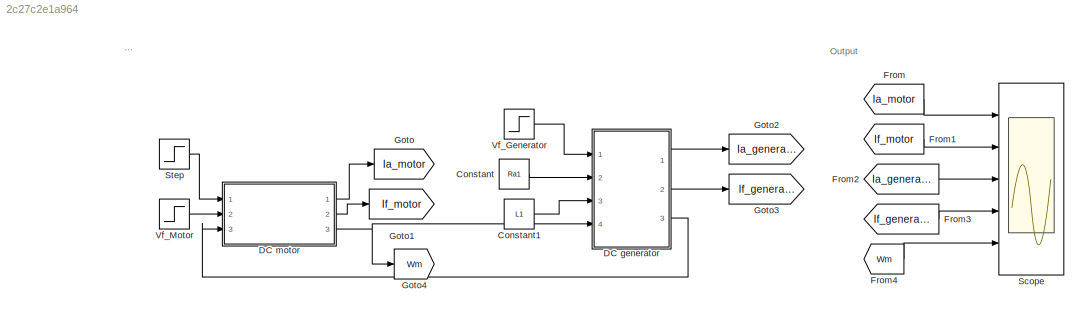
MODEL slx_2c27c2e1a964
KIND model
CONFIG AbsTol = auto
CONFIG EnableMultiTasking = off
CONFIG FixedStep = auto
CONFIG InitFcn = Va=240;\nVf=5;\n\nRf=5;\nMaf=1.8;\nLf=2;\nJ=.086;\nB=0;\nLa=10.4*10^-3;\nRa=1.43;\n\nRf1=5;\nKv1=1.8;\nMaf1=1.8;\nIf1=Kv1/Maf1;\nVf1=If1*Rf1;\nLf1=.2;\nJ1=.086;\nB1=0;\nLa1=10.4*10^(-3);\nRa1=1.43;\nL1=10.4*10^-3;\nRa1=1.43;
CONFIG MaxStep = auto
CONFIG MinStep = auto
CONFIG RelTol = 1e-3
CONFIG SampleTimeConstraint = Unconstrained
CONFIG Solver = VariableStepAuto
CONFIG SolverName = VariableStepAuto
CONFIG StartTime = 0.0
CONFIG StopTime = 10.0
BLOCK [Constant] Constant
  Value = Ra1
BLOCK [Constant] Constant1
  Value = L1
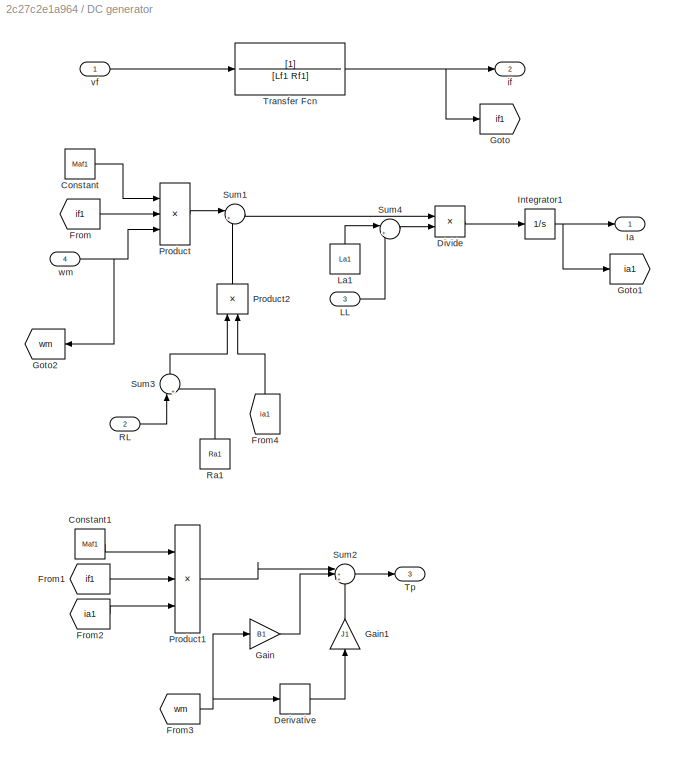
BLOCK [SubSystem] DC generator
  Ports = [4, 3]
  RequestExecContextInheritance = off
BLOCK [Constant] DC generator/Constant
  Value = Maf1
BLOCK [Constant] DC generator/Constant1
  Value = Maf1
BLOCK [Derivative] DC generator/Derivative
BLOCK [Product] DC generator/Divide
  Inputs = */
  Ports = [2, 1]
BLOCK [From] DC generator/From
  GotoTag = if1
BLOCK [From] DC generator/From1
  GotoTag = if1
BLOCK [From] DC generator/From2
  GotoTag = ia1
BLOCK [From] DC generator/From3
  GotoTag = wm
  NameLocation = top
BLOCK [From] DC generator/From4
  GotoTag = ia1
  NameLocation = right
BLOCK [Gain] DC generator/Gain
  Gain = B1
BLOCK [Gain] DC generator/Gain1
  Gain = J1
  NameLocation = right
BLOCK [Goto] DC generator/Goto
  GotoTag = if1
BLOCK [Goto] DC generator/Goto1
  GotoTag = ia1
BLOCK [Goto] DC generator/Goto2
  GotoTag = wm
  NameLocation = top
BLOCK [Outport] DC generator/Ia
BLOCK [Integrator] DC generator/Integrator1
  Ports = [1, 1]
BLOCK [Inport] DC generator/LL
  Port = 3
BLOCK [Constant] DC generator/La1
  NameLocation = right
  Value = La1
BLOCK [Product] DC generator/Product
  Inputs = 3
  Ports = [3, 1]
BLOCK [Product] DC generator/Product1
  Inputs = 3
  Ports = [3, 1]
BLOCK [Product] DC generator/Product2
  NameLocation = right
  Ports = [2, 1]
BLOCK [Inport] DC generator/RL
  Port = 2
BLOCK [Constant] DC generator/Ra1
  NameLocation = right
  Value = Ra1
BLOCK [Sum] DC generator/Sum1
  Inputs = |+-
  Ports = [2, 1]
BLOCK [Sum] DC generator/Sum2
  Inputs = |+++
  Ports = [3, 1]
BLOCK [Sum] DC generator/Sum3
  Inputs = |++
  NameLocation = right
  Ports = [2, 1]
BLOCK [Sum] DC generator/Sum4
  Inputs = |++
  Ports = [2, 1]
BLOCK [Outport] DC generator/Tp
  Port = 3
BLOCK [TransferFcn] DC generator/Transfer Fcn
  Denominator = [Lf1 Rf1]
BLOCK [Outport] DC generator/if
  Port = 2
BLOCK [Inport] DC generator/vf
BLOCK [Inport] DC generator/wm
  NameLocation = right
  Port = 4
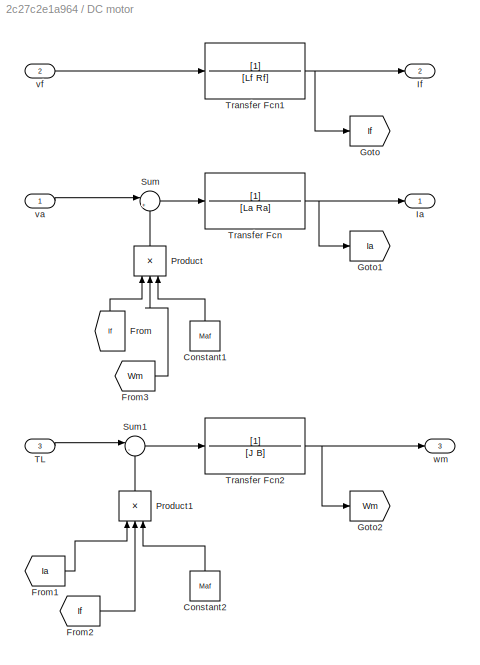
BLOCK [SubSystem] DC motor
  Ports = [3, 3]
  RequestExecContextInheritance = off
BLOCK [Constant] DC motor/Constant1
  NameLocation = right
  Value = Maf
BLOCK [Constant] DC motor/Constant2
  NameLocation = right
  Value = Maf
BLOCK [From] DC motor/From
  GotoTag = If
  NameLocation = right
BLOCK [From] DC motor/From1
  GotoTag = Ia
BLOCK [From] DC motor/From2
  GotoTag = If
BLOCK [From] DC motor/From3
  GotoTag = Wm
BLOCK [Goto] DC motor/Goto
  GotoTag = If
BLOCK [Goto] DC motor/Goto1
  GotoTag = Ia
BLOCK [Goto] DC motor/Goto2
  GotoTag = Wm
BLOCK [Outport] DC motor/Ia
BLOCK [Outport] DC motor/If
  Port = 2
BLOCK [Product] DC motor/Product
  Inputs = 3
  NameLocation = right
  Ports = [3, 1]
BLOCK [Product] DC motor/Product1
  Inputs = 3
  NameLocation = right
  Ports = [3, 1]
BLOCK [Sum] DC motor/Sum
  Inputs = |+-
  Ports = [2, 1]
BLOCK [Sum] DC motor/Sum1
  Inputs = |-+
  Ports = [2, 1]
BLOCK [Inport] DC motor/TL
  Port = 3
BLOCK [TransferFcn] DC motor/Transfer Fcn
  Denominator = [La Ra]
BLOCK [TransferFcn] DC motor/Transfer Fcn1
  Denominator = [Lf Rf]
BLOCK [TransferFcn] DC motor/Transfer Fcn2
  Denominator = [J B]
BLOCK [Inport] DC motor/va
BLOCK [Inport] DC motor/vf
  Port = 2
BLOCK [Outport] DC motor/wm
  Port = 3
BLOCK [From] From
  GotoTag = Ia_motor
BLOCK [From] From1
  GotoTag = If_motor
BLOCK [From] From2
  GotoTag = Ia_generator
BLOCK [From] From3
  GotoTag = If_generator
BLOCK [From] From4
  GotoTag = Wm
BLOCK [Goto] Goto
  GotoTag = Ia_motor
BLOCK [Goto] Goto1
  GotoTag = If_motor
BLOCK [Goto] Goto2
  GotoTag = Ia_generator
BLOCK [Goto] Goto3
  GotoTag = If_generator
BLOCK [Goto] Goto4
  GotoTag = Wm
BLOCK [Scope] Scope
  Floating = off
  NumInputPorts = 5
  Ports = [5]
  ScopeSpecificationString = Simulink.scopes.TimeScopeBlockCfg('CurrentConfiguration', extmgr.ConfigurationSet(extmgr.Configuration('Core','General UI',true),extmgr.Configuration('Core','Source UI',true),extmgr.Configuration('Sources','WiredSimulink',true),extmgr.Configuration('Visuals','Time Domain',true,'SerializedDisplays',{struct('MinYLimReal','-17.89713','MaxYLimReal','161.07416','YLabelReal','','MinYLimMag','0.00000','M...<+4777ch>
BLOCK [Step] Step
  After = Va
  SampleTime = 0
BLOCK [Step] Vf_Generator
  After = Vf1
  Before = Vf1
  SampleTime = 0
BLOCK [Step] Vf_Motor
  After = Vf
  Before = Vf
  SampleTime = 0
ANNOTATION (root): DC Motor-generator set
ANNOTATION (root): Output
LINE Constant1:1 -> DC generator:3
LINE Constant:1 -> DC generator:2
LINE DC generator/Constant1:1 -> DC generator/Product1:1
LINE DC generator/Constant:1 -> DC generator/Product:1
LINE DC generator/Derivative:1 -> DC generator/Gain1:1
LINE DC generator/Divide:1 -> DC generator/Integrator1:1
LINE DC generator/From1:1 -> DC generator/Product1:2
LINE DC generator/From2:1 -> DC generator/Product1:3
NET DC generator/From3:1 -> DC generator/Derivative:1, DC generator/Gain:1
LINE DC generator/From4:1 -> DC generator/Product2:2
LINE DC generator/From:1 -> DC generator/Product:2
LINE DC generator/Gain1:1 -> DC generator/Sum2:3
LINE DC generator/Gain:1 -> DC generator/Sum2:2
NET DC generator/Integrator1:1 -> DC generator/Goto1:1, DC generator/Ia:1
LINE DC generator/LL:1 -> DC generator/Sum4:2
LINE DC generator/La1:1 -> DC generator/Sum4:1
LINE DC generator/Product1:1 -> DC generator/Sum2:1
LINE DC generator/Product2:1 -> DC generator/Sum1:2
LINE DC generator/Product:1 -> DC generator/Sum1:1
LINE DC generator/RL:1 -> DC generator/Sum3:1
LINE DC generator/Ra1:1 -> DC generator/Sum3:2
LINE DC generator/Sum1:1 -> DC generator/Divide:1
LINE DC generator/Sum2:1 -> DC generator/Tp:1
LINE DC generator/Sum3:1 -> DC generator/Product2:1
LINE DC generator/Sum4:1 -> DC generator/Divide:2
NET DC generator/Transfer Fcn:1 -> DC generator/Goto:1, DC generator/if:1
LINE DC generator/vf:1 -> DC generator/Transfer Fcn:1
NET DC generator/wm:1 -> DC generator/Goto2:1, DC generator/Product:3
LINE DC generator:1 -> Goto2:1
LINE DC generator:2 -> Goto3:1
LINE DC generator:3 -> DC motor:3
LINE DC motor/Constant1:1 -> DC motor/Product:3
LINE DC motor/Constant2:1 -> DC motor/Product1:3
LINE DC motor/From1:1 -> DC motor/Product1:1
LINE DC motor/From2:1 -> DC motor/Product1:2
LINE DC motor/From3:1 -> DC motor/Product:2
LINE DC motor/From:1 -> DC motor/Product:1
LINE DC motor/Product1:1 -> DC motor/Sum1:2
LINE DC motor/Product:1 -> DC motor/Sum:2
LINE DC motor/Sum1:1 -> DC motor/Transfer Fcn2:1
LINE DC motor/Sum:1 -> DC motor/Transfer Fcn:1
LINE DC motor/TL:1 -> DC motor/Sum1:1
NET DC motor/Transfer Fcn1:1 -> DC motor/Goto:1, DC motor/If:1
NET DC motor/Transfer Fcn2:1 -> DC motor/Goto2:1, DC motor/wm:1
NET DC motor/Transfer Fcn:1 -> DC motor/Goto1:1, DC motor/Ia:1
LINE DC motor/va:1 -> DC motor/Sum:1
LINE DC motor/vf:1 -> DC motor/Transfer Fcn1:1
LINE DC motor:1 -> Goto:1
LINE DC motor:2 -> Goto1:1
NET DC motor:3 -> DC generator:4, Goto4:1
LINE From1:1 -> Scope:2
LINE From2:1 -> Scope:3
LINE From3:1 -> Scope:4
LINE From4:1 -> Scope:5
LINE From:1 -> Scope:1
LINE Step:1 -> DC motor:1
LINE Vf_Generator:1 -> DC generator:1
LINE Vf_Motor:1 -> DC motor:2
note: NET lines group one-source signal fan-out (src -> all destinations, sorted); 1:1 wires keep LINE
